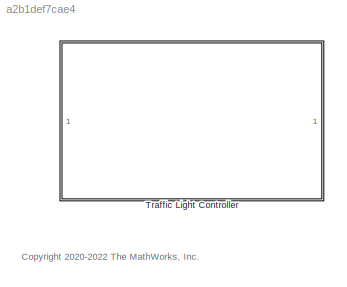
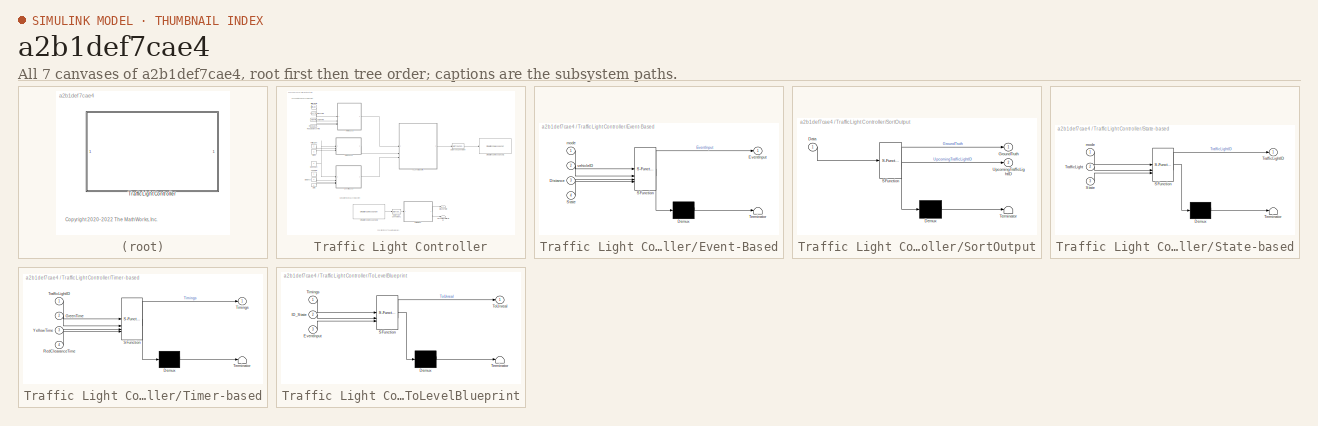
[diagram: thumbnail index - all 7 canvases of the model, root first then tree order]
MODEL slx_a2b1def7cae4
KIND library
CONFIG AbsTol = auto
CONFIG EnableMultiTasking = off
CONFIG FixedStep = auto
CONFIG MaxStep = auto
CONFIG MinStep = auto
CONFIG RelTol = 1e-3
CONFIG SampleTimeConstraint = Unconstrained
CONFIG SolverName = VariableStepAuto
CONFIG StartTime = 0.0
CONFIG StopTime = 10.0
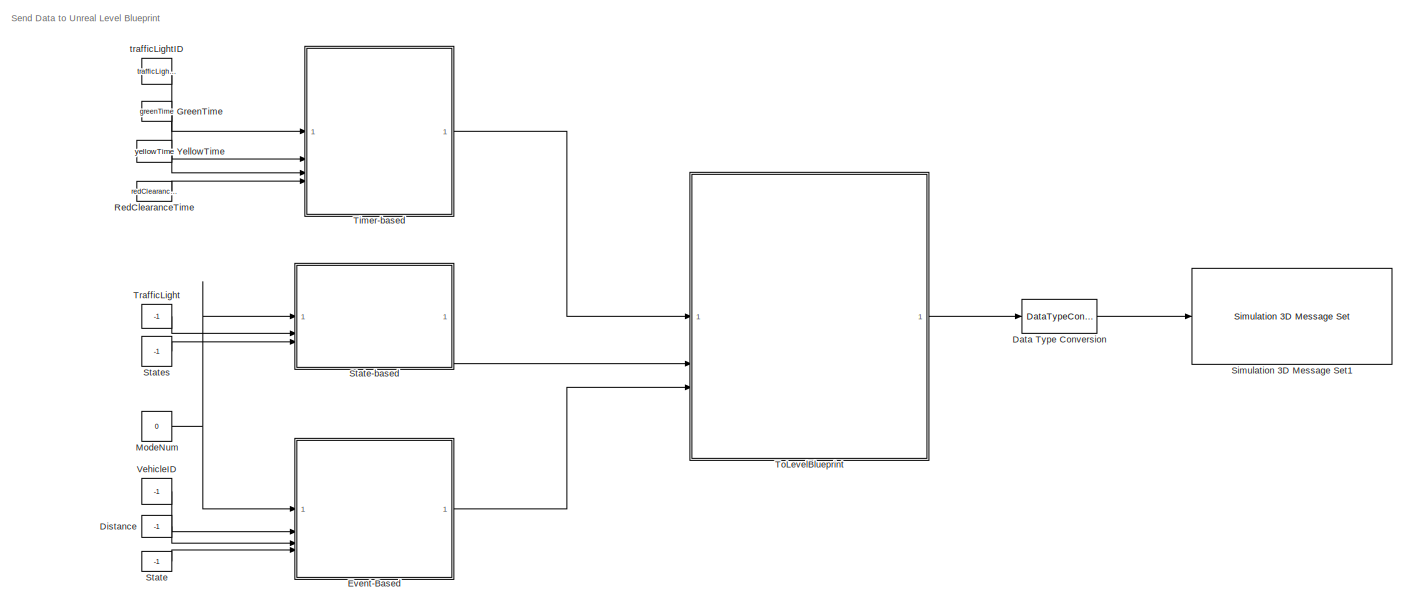
[diagram: Traffic Light Controller - part 1/2, full width, middle band]
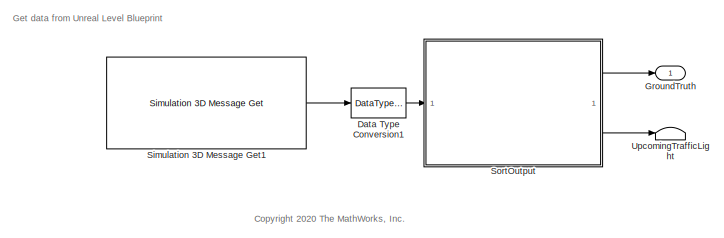
[diagram: Traffic Light Controller - part 2/2, bottom center region]
BLOCK [SubSystem] Traffic Light Controller
  Priority = -1
BLOCK [DataTypeConversion] Traffic Light Controller/Data Type Conversion
  OutDataTypeStr = single
  RndMeth = Floor
  SaturateOnIntegerOverflow = off
BLOCK [DataTypeConversion] Traffic Light Controller/Data Type Conversion1
  OutDataTypeStr = double
  RndMeth = Floor
  SaturateOnIntegerOverflow = off
BLOCK [Constant] Traffic Light Controller/Distance
  Value = -1
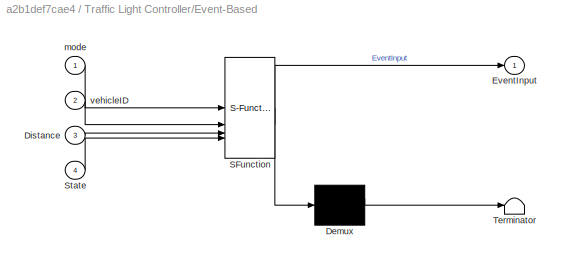
BLOCK [SubSystem] Traffic Light Controller/Event-Based
  ErrorFcn = Stateflow.Translate.translate
  PermitHierarchicalResolution = ExplicitOnly
  SFBlockType = MATLAB Function
  TreatAsAtomicUnit = on
BLOCK [Demux] Traffic Light Controller/Event-Based/ Demux 
  Outputs = 1
BLOCK [S-Function] Traffic Light Controller/Event-Based/ SFunction 
  EnableBusSupport = off
  FunctionName = sf_sfun
  PortCounts = [4 2]
  SFcnIsStateOwnerBlock = off
  SFunctionDeploymentMode = off
  Tag = Stateflow S-Function 1
BLOCK [Terminator] Traffic Light Controller/Event-Based/ Terminator 
BLOCK [Inport] Traffic Light Controller/Event-Based/Distance
  Port = 3
BLOCK [Outport] Traffic Light Controller/Event-Based/EventInput
BLOCK [Inport] Traffic Light Controller/Event-Based/State
  Port = 4
BLOCK [Inport] Traffic Light Controller/Event-Based/mode
BLOCK [Inport] Traffic Light Controller/Event-Based/vehicleID
  Port = 2
BLOCK [Constant] Traffic Light Controller/GreenTime
  Value = greenTime
BLOCK [Outport] Traffic Light Controller/GroundTruth
BLOCK [Constant] Traffic Light Controller/ModeNum
  Value = 0
BLOCK [Constant] Traffic Light Controller/RedClearanceTime
  Value = redClearanceTime
BLOCK [Reference] Traffic Light Controller/Simulation 3D Message Get1  REF=sim3dlib/Simulation 3D Message Get
  Priority = -1
  SourceBlock = sim3dlib/Simulation 3D Message Get
  SourceType = Simulation 3D Message Get
BLOCK [Reference] Traffic Light Controller/Simulation 3D Message Set1  REF=sim3dlib/Simulation 3D Message Set
  Priority = -1
  SourceBlock = sim3dlib/Simulation 3D Message Set
  SourceType = Simulation 3D Message Set
BLOCK [SubSystem] Traffic Light Controller/SortOutput
  ErrorFcn = Stateflow.Translate.translate
  PermitHierarchicalResolution = ExplicitOnly
  SFBlockType = MATLAB Function
  TreatAsAtomicUnit = on
BLOCK [Demux] Traffic Light Controller/SortOutput/ Demux 
  Outputs = 1
BLOCK [S-Function] Traffic Light Controller/SortOutput/ SFunction 
  EnableBusSupport = off
  FunctionName = sf_sfun
  PortCounts = [1 3]
  SFcnIsStateOwnerBlock = off
  SFunctionDeploymentMode = off
  Tag = Stateflow S-Function 3
BLOCK [Terminator] Traffic Light Controller/SortOutput/ Terminator 
BLOCK [Inport] Traffic Light Controller/SortOutput/Data
BLOCK [Outport] Traffic Light Controller/SortOutput/GroundTruth
BLOCK [Outport] Traffic Light Controller/SortOutput/UpcomingTrafficLightID
  Port = 2
BLOCK [Constant] Traffic Light Controller/State
  Value = -1
BLOCK [SubSystem] Traffic Light Controller/State-based
  ErrorFcn = Stateflow.Translate.translate
  PermitHierarchicalResolution = ExplicitOnly
  SFBlockType = MATLAB Function
  TreatAsAtomicUnit = on
BLOCK [Demux] Traffic Light Controller/State-based/ Demux 
  Outputs = 1
BLOCK [S-Function] Traffic Light Controller/State-based/ SFunction 
  EnableBusSupport = off
  FunctionName = sf_sfun
  PortCounts = [3 2]
  SFcnIsStateOwnerBlock = off
  SFunctionDeploymentMode = off
  Tag = Stateflow S-Function 4
BLOCK [Terminator] Traffic Light Controller/State-based/ Terminator 
BLOCK [Inport] Traffic Light Controller/State-based/State
  Port = 3
BLOCK [Inport] Traffic Light Controller/State-based/TrafficLight
  Port = 2
BLOCK [Outport] Traffic Light Controller/State-based/TrafficLightID
BLOCK [Inport] Traffic Light Controller/State-based/mode
BLOCK [Constant] Traffic Light Controller/States
  Value = -1
BLOCK [SubSystem] Traffic Light Controller/Timer-based
  ErrorFcn = Stateflow.Translate.translate
  PermitHierarchicalResolution = ExplicitOnly
  SFBlockType = MATLAB Function
  TreatAsAtomicUnit = on
BLOCK [Demux] Traffic Light Controller/Timer-based/ Demux 
  Outputs = 1
BLOCK [S-Function] Traffic Light Controller/Timer-based/ SFunction 
  EnableBusSupport = off
  FunctionName = sf_sfun
  PortCounts = [4 2]
  SFcnIsStateOwnerBlock = off
  SFunctionDeploymentMode = off
  Tag = Stateflow S-Function 5
BLOCK [Terminator] Traffic Light Controller/Timer-based/ Terminator 
BLOCK [Inport] Traffic Light Controller/Timer-based/GreenTime
  Port = 2
BLOCK [Inport] Traffic Light Controller/Timer-based/RedClearanceTime
  Port = 4
BLOCK [Outport] Traffic Light Controller/Timer-based/Timings
BLOCK [Inport] Traffic Light Controller/Timer-based/TrafficLightID
BLOCK [Inport] Traffic Light Controller/Timer-based/YellowTime
  Port = 3
BLOCK [SubSystem] Traffic Light Controller/ToLevelBlueprint
  ErrorFcn = Stateflow.Translate.translate
  PermitHierarchicalResolution = ExplicitOnly
  SFBlockType = MATLAB Function
  TreatAsAtomicUnit = on
BLOCK [Demux] Traffic Light Controller/ToLevelBlueprint/ Demux 
  Outputs = 1
BLOCK [S-Function] Traffic Light Controller/ToLevelBlueprint/ SFunction 
  EnableBusSupport = off
  FunctionName = sf_sfun
  PortCounts = [3 2]
  SFcnIsStateOwnerBlock = off
  SFunctionDeploymentMode = off
  Tag = Stateflow S-Function 6
BLOCK [Terminator] Traffic Light Controller/ToLevelBlueprint/ Terminator 
BLOCK [Inport] Traffic Light Controller/ToLevelBlueprint/EventInput
  Port = 3
BLOCK [Inport] Traffic Light Controller/ToLevelBlueprint/ID_State
  Port = 2
BLOCK [Inport] Traffic Light Controller/ToLevelBlueprint/Timings
BLOCK [Outport] Traffic Light Controller/ToLevelBlueprint/ToUnreal
BLOCK [Constant] Traffic Light Controller/TrafficLight
  Value = -1
BLOCK [Terminator] Traffic Light Controller/UpcomingTrafficLight
BLOCK [Constant] Traffic Light Controller/VehicleID
  Value = -1
BLOCK [Constant] Traffic Light Controller/YellowTime
  Value = yellowTime
BLOCK [Constant] Traffic Light Controller/trafficLightID
  Value = trafficLightID
ANNOTATION (root): <copyright redacted>
ANNOTATION Traffic Light Controller: <copyright redacted>
ANNOTATION Traffic Light Controller: Get data from Unreal Level Blueprint
ANNOTATION Traffic Light Controller: Send Data to Unreal Level Blueprint
CHART Traffic Light Controller/Event-Based states=1 transitions=1
  STATE_LABEL 'eML_blk_kernel()'
  STATE_LABEL "SCRIPT:\nfunction EventInput = Event_Based(mode, vehicleID, Distance, State)\n%   Event_Based converts vehicleID, Distance and State into a row vector\n\n%   <copyright redacted>\n\ncoder.extrinsic('message')\nif mode==1\n    if ~(Distance>=1 && Distance<=100)\n        pause(0.5);\n        error(message('shared_sim3dblks:sim3dblkHelperTrafficLightController:invalidDistance'));\n    elseif ~(Sta...<+325ch>"
CHART Traffic Light Controller/SortOutput states=1 transitions=1
  STATE_LABEL 'eML_blk_kernel()'
  STATE_LABEL "SCRIPT:\nfunction [GroundTruth,UpcomingTrafficLightID] = LevelBlueprint(Data)\n%   LevelBlueprint seperates incoming Data into GroundTruth and\n%   UpcomingTrafficLightID\n\n%   <copyright redacted>\n\nGroundTruth=reshape(Data(3:end),2,[])';\nGroundTruth=sortrows(GroundTruth,1);\nUpcomingTrafficLightID=Data(2);\nend"
CHART Traffic Light Controller/State-based states=1 transitions=1
  STATE_LABEL 'eML_blk_kernel()'
  STATE_LABEL "SCRIPT:\nfunction TrafficLightID = StateBased(mode,TrafficLight,State)\n%   StateBased converts TrafficLight and State to a row vector\n\n%   <copyright redacted>\n\ncoder.extrinsic('message')\n\n\nif mode==2\n    if ~(all(TrafficLight>=1) && all(TrafficLight<=200)) || ~all(mod(TrafficLight,1)==0)\n        pause(0.5);\n        error(message('shared_sim3dblks:sim3dblkHelperTrafficLightController:...<+857ch>"
CHART Traffic Light Controller/Timer-based states=1 transitions=1
  STATE_LABEL 'eML_blk_kernel()'
  STATE_LABEL "SCRIPT:\nfunction Timings = TimerBased(TrafficLightID,GreenTime,YellowTime,RedClearanceTime)\n%   TimerBased converts TrafficLightID, GreenTime, YellowTime and\n%   RedClearanceTime to a row vector.\n\n%   <copyright redacted>\n\nsort_Timings = [TrafficLightID GreenTime YellowTime RedClearanceTime];\nTimings=reshape(sort_Timings',1,[]);"
CHART Traffic Light Controller/ToLevelBlueprint states=1 transitions=1
  STATE_LABEL 'eML_blk_kernel()'
  STATE_LABEL 'SCRIPT:\nfunction ToUnreal = inputToUnreal(Timings, ID_State, EventInput)\n%   inputToUnreal converts Timings, ID_State, EventInput to a single row\n%   vector. Also it includes the matrix(Timings) length and stateLength in\n%   the row vector\n\n%   <copyright redacted>\n\nmatrixLength=length(Timings)/4;\nstatesLength=length(ID_State)/2;\nactualData = [EventInput statesLength matrixLengt...<+107ch>'
CHART  states=0 transitions=0
CHART  states=0 transitions=0
CHART  states=0 transitions=0
CHART  states=0 transitions=0
CHART  states=0 transitions=0
